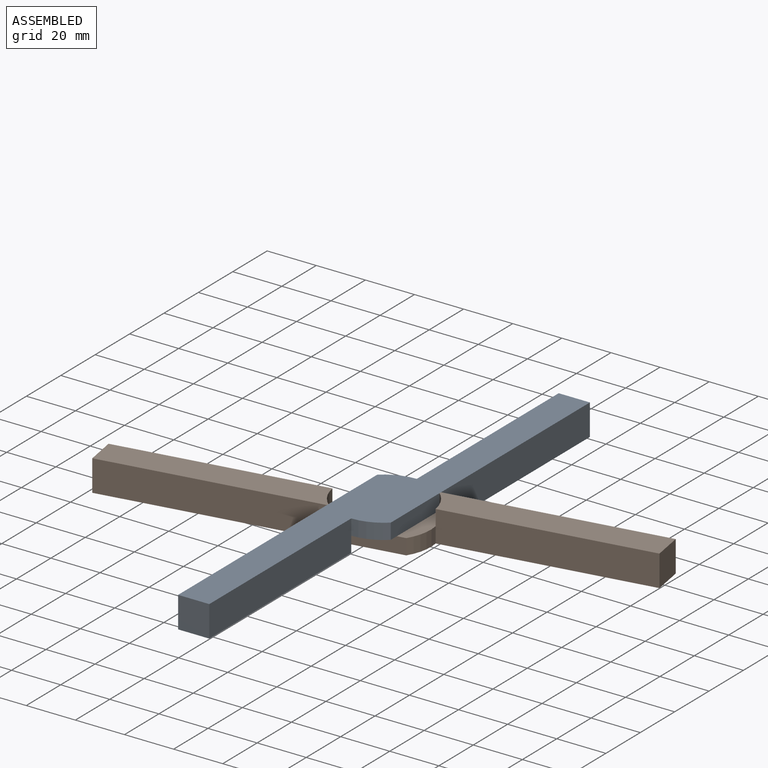
[diagram: assembled view]
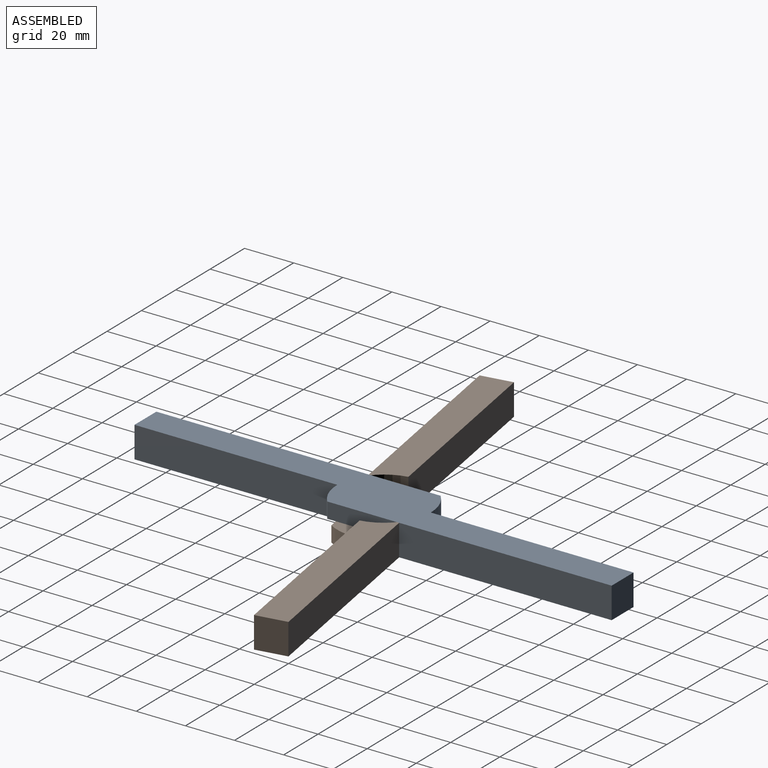
[diagram: assembled view, second angle]
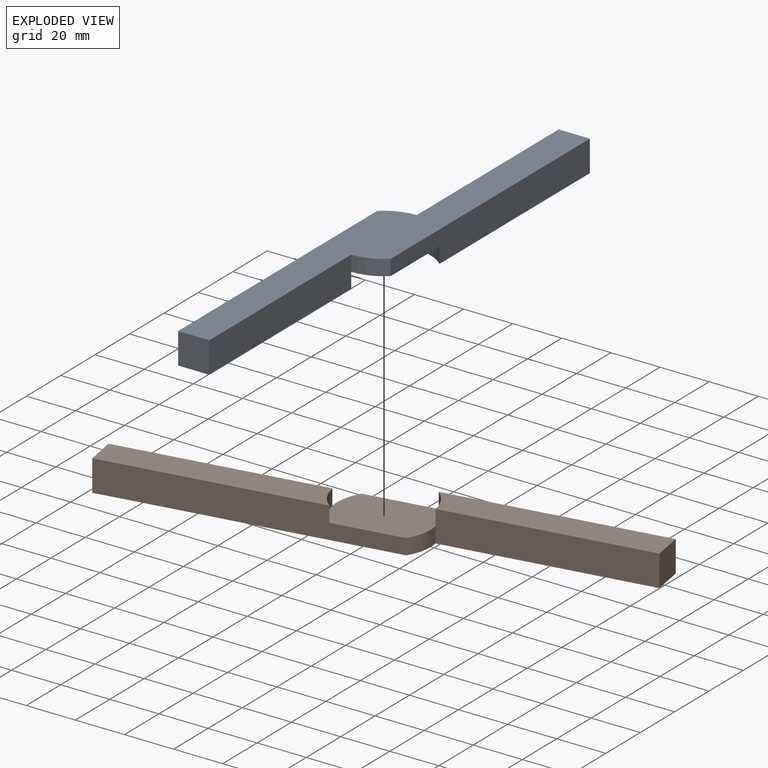
[diagram: exploded view]
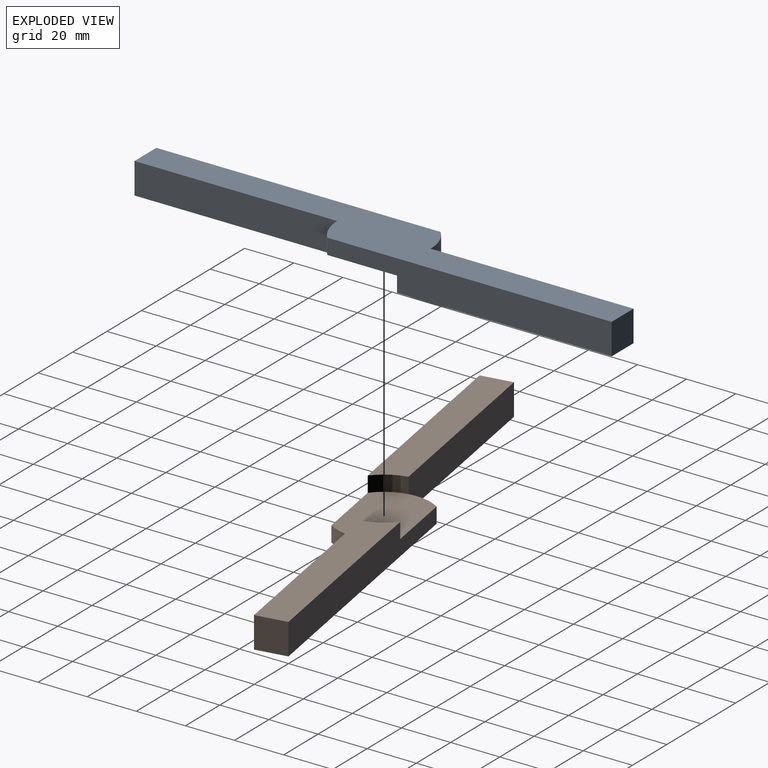
[diagram: exploded view, second angle]
ASSEMBLY  parts=2 mates=2
PART A: 14 faces, bbox 25.4x203.2x12.7 mm
  f0: cylinder r=19.05mm len=12.7mm, axis (0,0,-1), area 88.3mm2, adj f5,f6,f10,f11
  f1: cylinder r=19.05mm len=12.7mm, axis (0,0,-1), area 88.3mm2, adj f8,f9,f10,f11
  f2: plane 87.4x12.7mm, normal (0,0,-1), area 1067.7mm2, adj f6,f7,f8,f12
  f3: plane 87.4x12.7mm, normal (0,0,-1), area 1067.7mm2, adj f4,f5,f9,f13
  f4: plane 12.7x12.7mm, normal (0,1,0), area 161.3mm2, adj f3,f5,f9,f10
  f5: plane 82.55x12.7mm, normal (-1,0,0), area 1048.4mm2, adj f0,f3,f4,f10,f13
  f6: plane 115.8x12.7mm, normal (-1,0,0), area 1290.3mm2, adj f0,f2,f7,f10,f11,f12
  f7: plane 12.7x12.7mm, normal (0,-1,0), area 161.3mm2, adj f2,f6,f8,f10
  f8: plane 82.55x12.7mm, normal (1,0,0), area 1048.4mm2, adj f1,f2,f7,f10,f12
  f9: plane 115.8x12.7mm, normal (1,0,0), area 1290.3mm2, adj f1,f3,f4,f10,f11,f13
  f10: plane 203.2x25.4mm, normal (0,0,1), area 3025.8mm2, adj f0,f1,f4,f5,f6,f7,f8,f9
  f11: plane 38.1x25.4mm, normal (0,0,-1), area 890.3mm2, adj f0,f1,f6,f9,f12,f13
  f12: cylinder r=19.05mm len=12.7mm, axis (0,0,-1), area 88.3mm2, adj f2,f6,f8,f11
  f13: cylinder r=19.05mm len=12.7mm, axis (0,0,-1), area 88.3mm2, adj f3,f5,f9,f11
PART B: 14 faces, bbox 25.4x203.2x12.7 mm
  f0: cylinder r=19.05mm len=12.7mm, axis (0,0,-1), area 88.3mm2, adj f4,f5,f10,f13
  f1: plane 115.8x12.7mm, normal (1,0,0), area 1290.3mm2, adj f2,f6,f9,f10,f12,f13
  f2: cylinder r=19.05mm len=12.7mm, axis (0,0,-1), area 88.3mm2, adj f1,f7,f10,f13
  f3: plane 87.4x12.7mm, normal (0,0,1), area 1067.7mm2, adj f4,f7,f8,f11
  f4: plane 115.8x12.7mm, normal (-1,0,0), area 1290.3mm2, adj f0,f3,f8,f10,f11,f13
  f5: plane 82.55x12.7mm, normal (-1,0,0), area 1048.4mm2, adj f0,f6,f9,f10,f12
  f6: plane 12.7x12.7mm, normal (0,-1,0), area 161.3mm2, adj f1,f5,f9,f10
  f7: plane 82.55x12.7mm, normal (1,0,0), area 1048.4mm2, adj f2,f3,f8,f10,f11
  f8: plane 12.7x12.7mm, normal (0,1,0), area 161.3mm2, adj f3,f4,f7,f10
  f9: plane 87.4x12.7mm, normal (0,0,1), area 1067.7mm2, adj f1,f5,f6,f12
  f10: plane 203.2x25.4mm, normal (0,0,-1), area 3025.8mm2, adj f0,f1,f2,f4,f5,f6,f7,f8
  f11: cylinder r=19.05mm len=12.7mm, axis (0,0,1), area 88.3mm2, adj f3,f4,f7,f13
  f12: cylinder r=19.05mm len=12.7mm, axis (0,0,1), area 88.3mm2, adj f1,f5,f9,f13
  f13: plane 38.1x25.4mm, normal (0,0,1), area 890.3mm2, adj f0,f1,f2,f4,f11,f12
PLACE A t=(-75,172.35,101.42)mm
PLACE B rot(axis=(0,0,1),99.7deg) t=(-75,172.35,101.42)mm
MATE planar B.f13 <-> A.f0  axis (0,0,1) through (-77.15,184.86,107.77)mm
MATE revolute B.f0 <-> A.f0  axis (0,0,1) through (-75,172.35,107.77)mm
